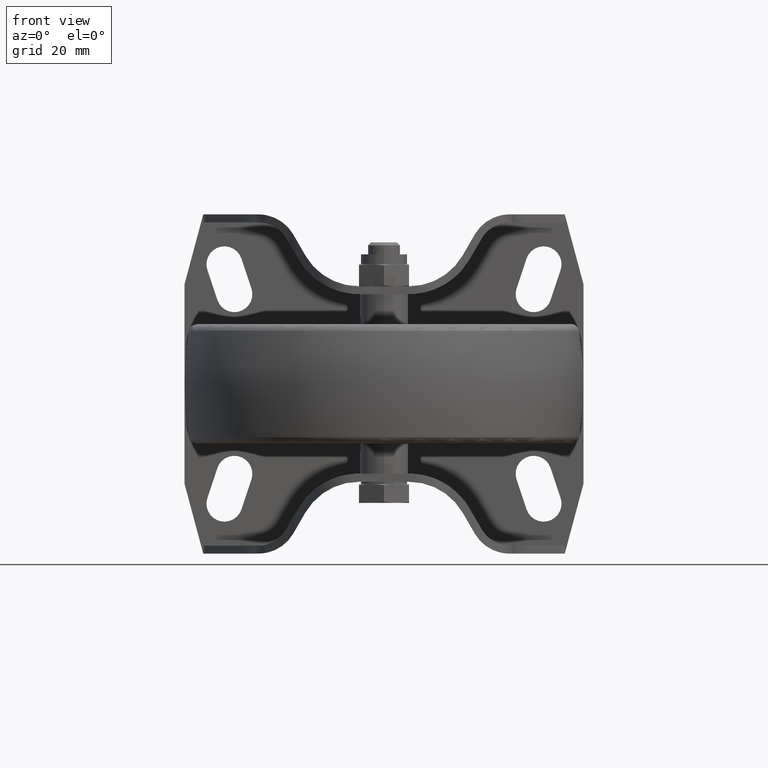
[diagram: clean part render]
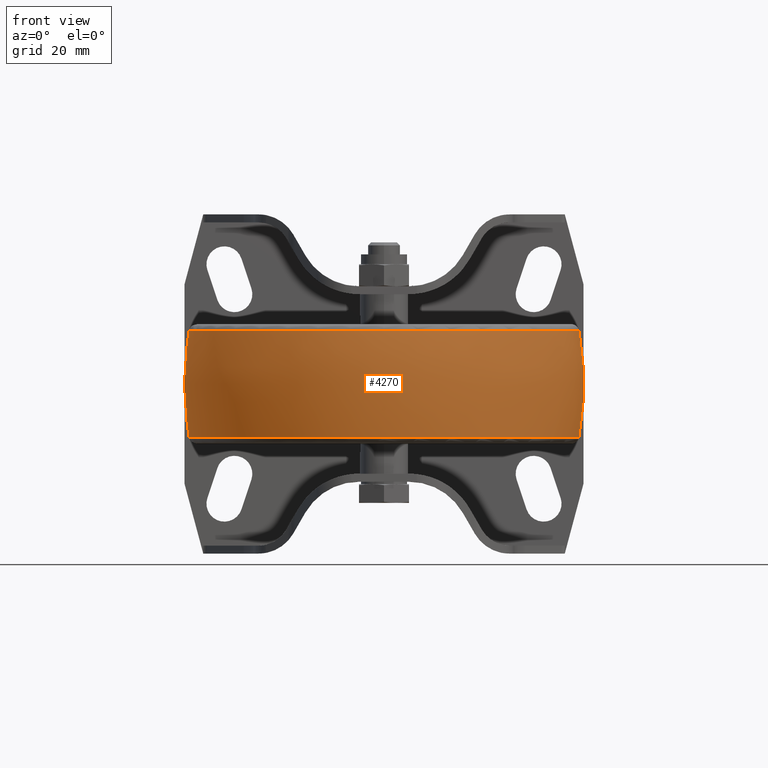
[diagram: same view with one face highlighted and labeled with its STEP entity id]
A machine part, front view. The second image highlights one B-rep face of the part: STEP entity #4270.
In plain terms, the highlighted face is a freeform B-spline surface patch.
Its self-contained STEP definition (entity closure, byte-faithful):
#18=(
BOUNDED_SURFACE()
B_SPLINE_SURFACE(2,2,((#7526,#7527,#7528,#7529,#7530,#7531,#7532,#7533,
#7534),(#7535,#7536,#7537,#7538,#7539,#7540,#7541,#7542,#7543),(#7544,#7545,
#7546,#7547,#7548,#7549,#7550,#7551,#7552)),.UNSPECIFIED.,.F.,.T.,.F.)
B_SPLINE_SURFACE_WITH_KNOTS((3,3),(3,2,2,2,3),(-0.167448079219689,0.167448079219691),
(-3.14159265358979,-1.5707963267949,0.,1.5707963267949,3.14159265358979),
 .UNSPECIFIED.)
GEOMETRIC_REPRESENTATION_ITEM()
RATIONAL_B_SPLINE_SURFACE(((1.,0.707106781186548,1.,0.707106781186548,1.,
0.707106781186548,1.,0.707106781186548,1.),(0.986013297183273,0.697216688778399,
0.986013297183273,0.697216688778399,0.986013297183273,0.697216688778399,
0.986013297183273,0.697216688778399,0.986013297183273),(1.,0.707106781186548,
1.,0.707106781186548,1.,0.707106781186548,1.,0.707106781186548,1.)))
REPRESENTATION_ITEM('')
SURFACE()
);
#542=FACE_OUTER_BOUND('',#801,.T.);
#801=EDGE_LOOP('',(#3700,#3701,#3702,#3703));
#1552=CIRCLE('',#4776,48.8810637746615);
#1553=CIRCLE('',#4777,79.9999999999995);
#1554=CIRCLE('',#4778,48.8810637746615);
#1925=VERTEX_POINT('',#7523);
#1926=VERTEX_POINT('',#7553);
#2519=EDGE_CURVE('',#1925,#1925,#1552,.T.);
#2520=EDGE_CURVE('',#1925,#1926,#1553,.T.);
#2521=EDGE_CURVE('',#1926,#1926,#1554,.T.);
#3700=ORIENTED_EDGE('',*,*,#2519,.F.);
#3701=ORIENTED_EDGE('',*,*,#2520,.T.);
#3702=ORIENTED_EDGE('',*,*,#2521,.T.);
#3703=ORIENTED_EDGE('',*,*,#2520,.F.);
#4270=ADVANCED_FACE('',(#542),#18,.F.);
#4776=AXIS2_PLACEMENT_3D('',#7525,#6008,#6009);
#4777=AXIS2_PLACEMENT_3D('',#7554,#6010,#6011);
#4778=AXIS2_PLACEMENT_3D('',#7555,#6012,#6013);
#6008=DIRECTION('center_axis',(0.,0.,-1.));
#6009=DIRECTION('ref_axis',(1.,0.,0.));
#6010=DIRECTION('center_axis',(-1.22464679914735E-16,-1.,-8.76367994973887E-17));
#6011=DIRECTION('ref_axis',(1.,-1.22464679914735E-16,2.32387611380248E-16));
#6012=DIRECTION('center_axis',(0.,0.,-1.));
#6013=DIRECTION('ref_axis',(1.,0.,0.));
#7523=CARTESIAN_POINT('',(48.8810637746615,-1.19720122560095E-14,-13.3333333333333));
#7525=CARTESIAN_POINT('Origin',(0.,0.,-13.3333333333333));
#7526=CARTESIAN_POINT('Ctrl Pts',(48.8810637746616,-4.70732655095786E-15,
13.3333333333333));
#7527=CARTESIAN_POINT('Ctrl Pts',(48.8810637746616,-48.8810637746616,13.3333333333333));
#7528=CARTESIAN_POINT('Ctrl Pts',(-1.08700626574461E-14,-48.8810637746616,
13.3333333333333));
#7529=CARTESIAN_POINT('Ctrl Pts',(-48.8810637746616,-48.8810637746616,13.3333333333333));
#7530=CARTESIAN_POINT('Ctrl Pts',(-48.8810637746616,-4.70732655095786E-15,
13.3333333333333));
#7531=CARTESIAN_POINT('Ctrl Pts',(-48.8810637746616,48.8810637746616,13.3333333333333));
#7532=CARTESIAN_POINT('Ctrl Pts',(-1.08700626574461E-14,48.8810637746616,
13.3333333333333));
#7533=CARTESIAN_POINT('Ctrl Pts',(48.8810637746616,48.8810637746616,13.3333333333333));
#7534=CARTESIAN_POINT('Ctrl Pts',(48.8810637746616,-4.70732655095786E-15,
13.3333333333333));
#7535=CARTESIAN_POINT('Ctrl Pts',(51.1348084539376,-3.53883589099267E-15,
-6.83823190538938E-14));
#7536=CARTESIAN_POINT('Ctrl Pts',(51.1348084539376,-51.1348084539376,-7.28636100097089E-14));
#7537=CARTESIAN_POINT('Ctrl Pts',(-7.77156117237605E-15,-51.1348084539376,
-8.4746706004706E-14));
#7538=CARTESIAN_POINT('Ctrl Pts',(-51.1348084539376,-51.1348084539376,-9.66298019997031E-14));
#7539=CARTESIAN_POINT('Ctrl Pts',(-51.1348084539376,-3.53883589099267E-15,
-9.2148511043888E-14));
#7540=CARTESIAN_POINT('Ctrl Pts',(-51.1348084539376,51.1348084539376,-8.76672200880729E-14));
#7541=CARTESIAN_POINT('Ctrl Pts',(-7.77156117237606E-15,51.1348084539376,
-7.57841240930758E-14));
#7542=CARTESIAN_POINT('Ctrl Pts',(51.1348084539376,51.1348084539376,-6.39010280980787E-14));
#7543=CARTESIAN_POINT('Ctrl Pts',(51.1348084539376,-3.53883589099267E-15,
-6.83823190538938E-14));
#7544=CARTESIAN_POINT('Ctrl Pts',(48.8810637746615,-2.3703452310275E-15,
-13.3333333333333));
#7545=CARTESIAN_POINT('Ctrl Pts',(48.8810637746615,-48.8810637746615,-13.3333333333333));
#7546=CARTESIAN_POINT('Ctrl Pts',(-4.6730596873061E-15,-48.8810637746616,
-13.3333333333333));
#7547=CARTESIAN_POINT('Ctrl Pts',(-48.8810637746616,-48.8810637746615,-13.3333333333333));
#7548=CARTESIAN_POINT('Ctrl Pts',(-48.8810637746616,-2.3703452310275E-15,
-13.3333333333333));
#7549=CARTESIAN_POINT('Ctrl Pts',(-48.8810637746616,48.8810637746615,-13.3333333333333));
#7550=CARTESIAN_POINT('Ctrl Pts',(-4.6730596873061E-15,48.8810637746616,
-13.3333333333333));
#7551=CARTESIAN_POINT('Ctrl Pts',(48.8810637746615,48.8810637746615,-13.3333333333333));
#7552=CARTESIAN_POINT('Ctrl Pts',(48.8810637746615,-2.3703452310275E-15,
-13.3333333333333));
#7553=CARTESIAN_POINT('',(48.8810637746615,-1.19720122560095E-14,13.3333333333333));
#7554=CARTESIAN_POINT('Origin',(-29.9999999999995,1.35104506449312E-16,
8.59410308861895E-14));
#7555=CARTESIAN_POINT('Origin',(0.,0.,13.3333333333333));